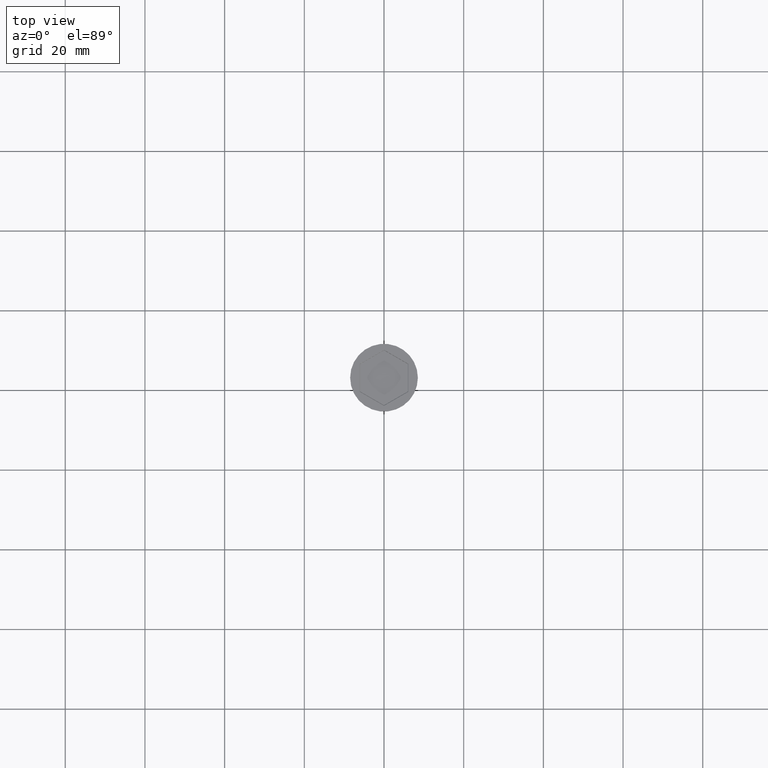
[diagram: clean part render]
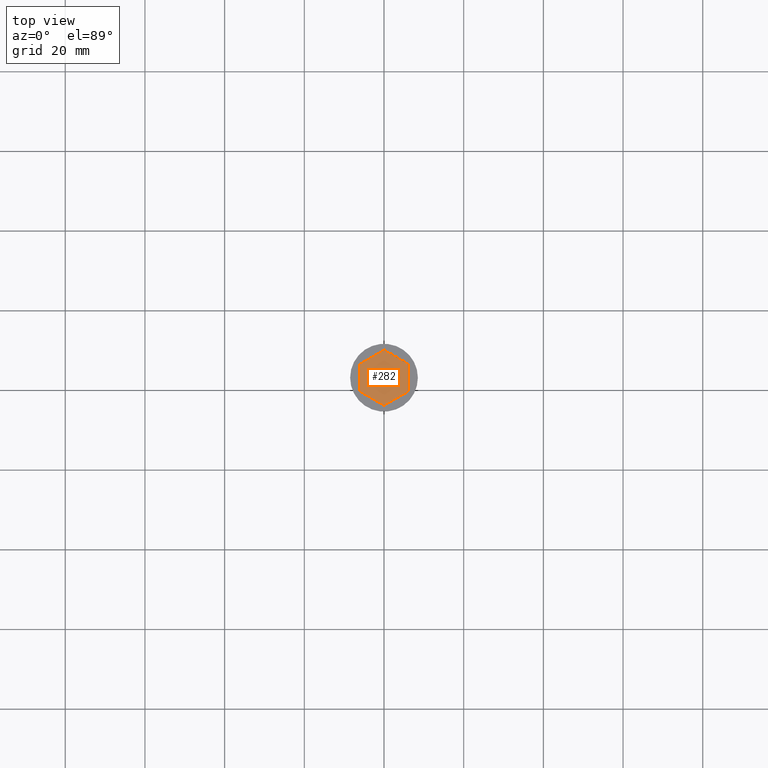
[diagram: same view with one face highlighted and labeled with its STEP entity id]
A machine part, top view. The second image highlights one B-rep face of the part: STEP entity #282.
In plain terms, the highlighted planar face has unit normal (-0, 0, 1).
Its self-contained STEP definition (entity closure, byte-faithful):
#45 = EDGE_CURVE ( 'NONE', #779, #1442, #1200, .T. ) ;
#57 = DIRECTION ( 'NONE',  ( 1.251928832280966188E-16, -1.000000000000000000, 0.000000000000000000 ) ) ;
#92 = DIRECTION ( 'NONE',  ( 1.000000000000000000, 0.000000000000000000, 0.000000000000000000 ) ) ;
#107 = ORIENTED_EDGE ( 'NONE', *, *, #800, .T. ) ;
#115 = FACE_OUTER_BOUND ( 'NONE', #1553, .T. ) ;
#133 = ORIENTED_EDGE ( 'NONE', *, *, #45, .T. ) ;
#147 = DIRECTION ( 'NONE',  ( 0.000000000000000000, 1.000000000000000000, -0.000000000000000000 ) ) ;
#164 = ORIENTED_EDGE ( 'NONE', *, *, #737, .T. ) ;
#208 = CARTESIAN_POINT ( 'NONE',  ( -6.000000000000000000, 3.464101615137752166, -2.000000000000000000 ) ) ;
#259 = VERTEX_POINT ( 'NONE', #415 ) ;
#282 = ADVANCED_FACE ( 'NONE', ( #115 ), #706, .T. ) ;
#296 = VECTOR ( 'NONE', #147, 1000.000000000000000 ) ;
#301 = CARTESIAN_POINT ( 'NONE',  ( -3.000000000000000888, -5.196152422706632024, -2.000000000000000000 ) ) ;
#344 = CARTESIAN_POINT ( 'NONE',  ( 6.000000000000000000, 3.464101615137754830, -2.000000000000000000 ) ) ;
#358 = ORIENTED_EDGE ( 'NONE', *, *, #591, .T. ) ;
#360 = LINE ( 'NONE', #863, #1185 ) ;
#412 = ORIENTED_EDGE ( 'NONE', *, *, #1123, .T. ) ;
#415 = CARTESIAN_POINT ( 'NONE',  ( 6.000000000000000000, -3.464101615137756607, -2.000000000000000000 ) ) ;
#426 = VECTOR ( 'NONE', #1297, 1000.000000000000000 ) ;
#579 = CARTESIAN_POINT ( 'NONE',  ( -3.000000000000000000, 5.196152422706630247, -2.000000000000000000 ) ) ;
#591 = EDGE_CURVE ( 'NONE', #794, #1469, #972, .T. ) ;
#613 = CARTESIAN_POINT ( 'NONE',  ( 0.000000000000000000, 0.000000000000000000, -2.000000000000000000 ) ) ;
#632 = VECTOR ( 'NONE', #977, 1000.000000000000000 ) ;
#643 = DIRECTION ( 'NONE',  ( -0.8660254037844387076, 0.4999999999999998890, 0.000000000000000000 ) ) ;
#646 = VERTEX_POINT ( 'NONE', #344 ) ;
#706 = PLANE ( 'NONE',  #1304 ) ;
#737 = EDGE_CURVE ( 'NONE', #259, #646, #1225, .T. ) ;
#746 = EDGE_CURVE ( 'NONE', #646, #794, #360, .T. ) ;
#750 = LINE ( 'NONE', #1494, #997 ) ;
#753 = CARTESIAN_POINT ( 'NONE',  ( -6.000000000000000000, -3.464101615137754830, -2.000000000000000000 ) ) ;
#779 = VERTEX_POINT ( 'NONE', #753 ) ;
#794 = VERTEX_POINT ( 'NONE', #1121 ) ;
#800 = EDGE_CURVE ( 'NONE', #1469, #779, #750, .T. ) ;
#825 = CARTESIAN_POINT ( 'NONE',  ( 1.734723475976807094E-15, -6.928203230275511437, -2.000000000000000000 ) ) ;
#830 = DIRECTION ( 'NONE',  ( -0.8660254037844385966, -0.5000000000000001110, 0.000000000000000000 ) ) ;
#863 = CARTESIAN_POINT ( 'NONE',  ( 2.999999999999998668, 5.196152422706632024, -2.000000000000000000 ) ) ;
#918 = VECTOR ( 'NONE', #830, 1000.000000000000000 ) ;
#972 = LINE ( 'NONE', #579, #918 ) ;
#977 = DIRECTION ( 'NONE',  ( 0.8660254037844385966, 0.5000000000000001110, 0.000000000000000000 ) ) ;
#997 = VECTOR ( 'NONE', #57, 1000.000000000000000 ) ;
#1121 = CARTESIAN_POINT ( 'NONE',  ( 0.000000000000000000, 6.928203230275507885, -2.000000000000000000 ) ) ;
#1123 = EDGE_CURVE ( 'NONE', #1442, #259, #1125, .T. ) ;
#1125 = LINE ( 'NONE', #1224, #632 ) ;
#1185 = VECTOR ( 'NONE', #643, 1000.000000000000114 ) ;
#1200 = LINE ( 'NONE', #301, #426 ) ;
#1224 = CARTESIAN_POINT ( 'NONE',  ( 3.000000000000001776, -5.196152422706633800, -2.000000000000000000 ) ) ;
#1225 = LINE ( 'NONE', #1467, #296 ) ;
#1297 = DIRECTION ( 'NONE',  ( 0.8660254037844385966, -0.5000000000000001110, 0.000000000000000000 ) ) ;
#1304 = AXIS2_PLACEMENT_3D ( 'NONE', #613, #1601, #92 ) ;
#1386 = ORIENTED_EDGE ( 'NONE', *, *, #746, .T. ) ;
#1442 = VERTEX_POINT ( 'NONE', #825 ) ;
#1467 = CARTESIAN_POINT ( 'NONE',  ( 6.000000000000000000, 0.000000000000000000, -2.000000000000000000 ) ) ;
#1469 = VERTEX_POINT ( 'NONE', #208 ) ;
#1494 = CARTESIAN_POINT ( 'NONE',  ( -6.000000000000000000, -7.511572993685799101E-16, -2.000000000000000000 ) ) ;
#1553 = EDGE_LOOP ( 'NONE', ( #1386, #358, #107, #133, #412, #164 ) ) ;
#1601 = DIRECTION ( 'NONE',  ( -0.000000000000000000, 0.000000000000000000, 1.000000000000000000 ) ) ;